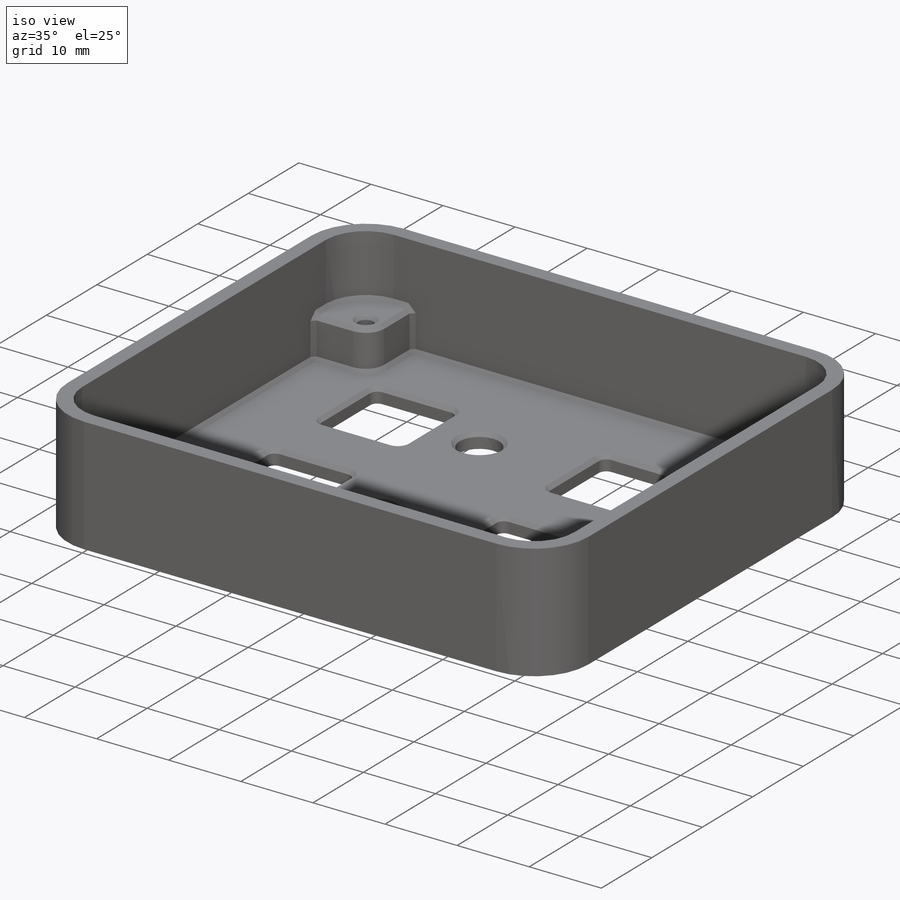
[diagram: iso view]
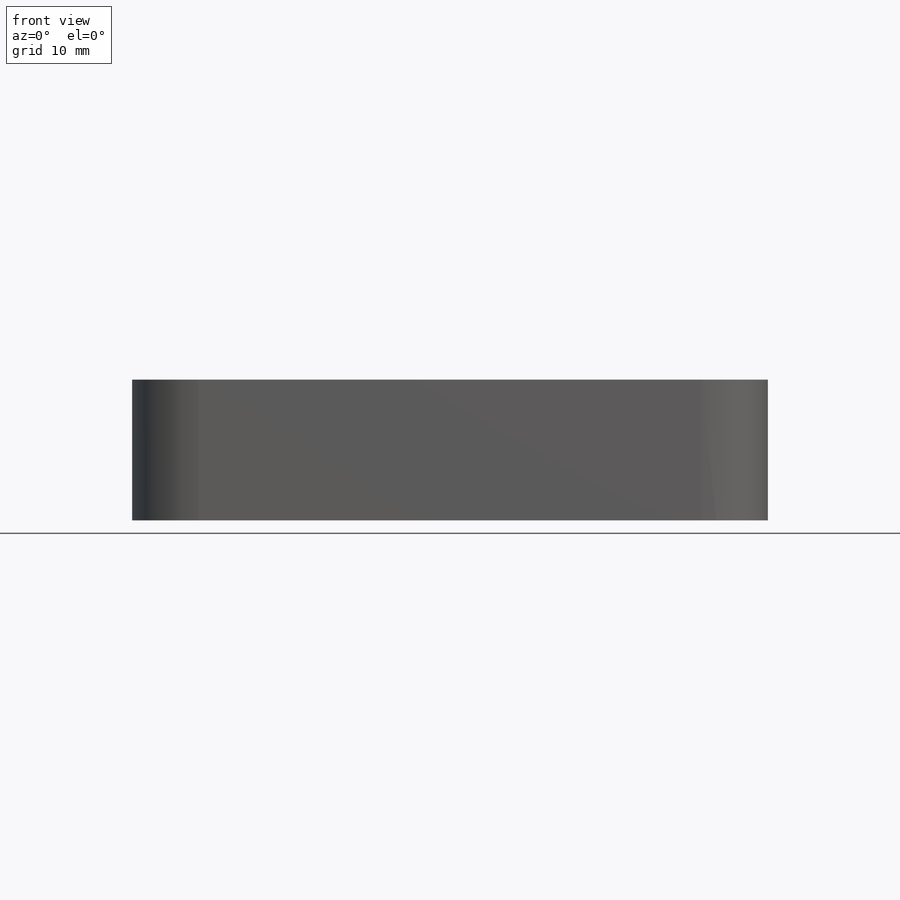
[diagram: front view]
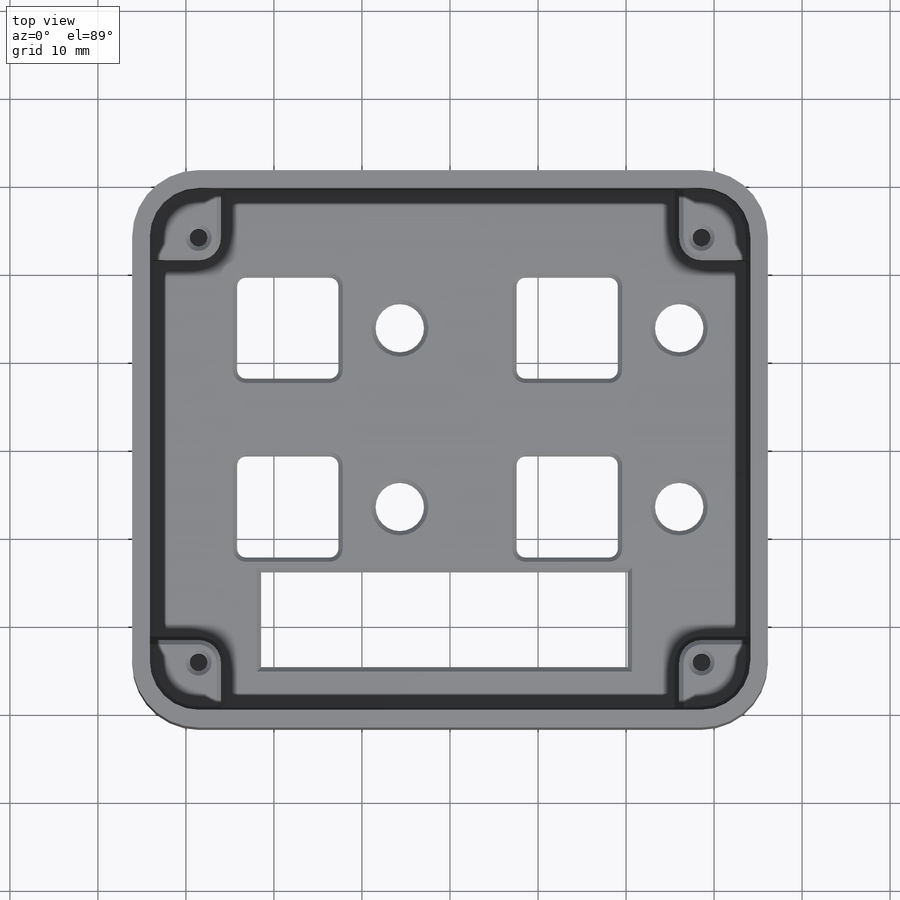
[diagram: top view]
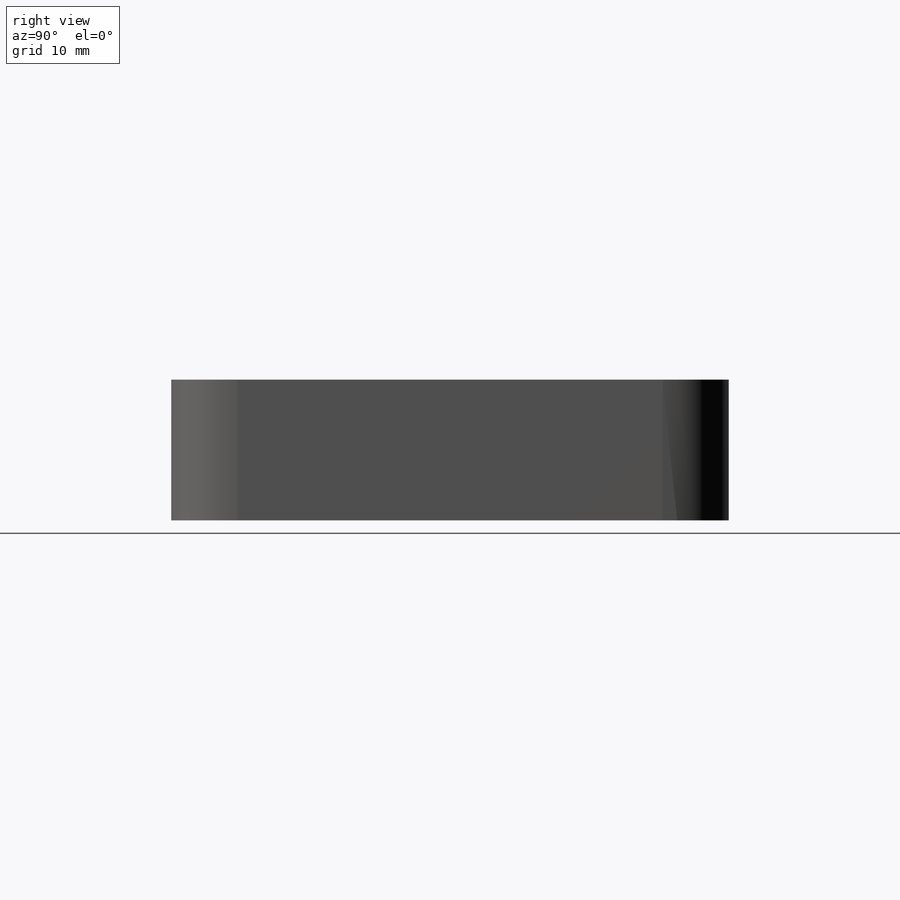
[diagram: right view]
SOLIDWORKS PART (.sldprt)
format: sldprt  version: not decoded by parser v0  size: 547,840 bytes
history: native  units: mm
features: sketch x3, extrude x2, material x1, fillet x1, shell x1, cut_extrude x1, chamfer x1 (+13 scaffold rows collapsed)
feature tree (23):
  scaffold x13  (default folders/planes/origin — collapsed)
  material  "Material <not specified>"
  sketch  "Sketch1"  dims[D1=63.34mm D2=72.23mm]
  extrude  "Boss-Extrude1"  Depth=16mm
  fillet  "Fillet1"  Radius=7.54mm
  shell  "Shell1"  Thickness=2mm
  sketch  "Sketch2"  dims[c1.D6=5.5mm c1.D15=1.0mm c1.D1=12.18mm c1.D2=30.41mm c1.D3=11.69mm c1.D4=11.5mm c1.D5=18.27mm c1.D9=31.75mm c1.D10=20.32mm c1.D11=13.91mm c1.D12=6.5mm c1.D13=11.1mm c1.D14=43.2mm c2.D3=17.7mm c2.D5=7.108mm c2.D11=10.8mm c2.D12=41.64mm c2.D13=17.68mm c2.D14=36.75mm c2.D7=2.0 c2.D8=2.0]
  cut_extrude  "Cut-Extrude1"  [1 undecoded]
  sketch  "Sketch3"  dims[c1.D5=2.0mm c1.D14=2.0mm c1.D21=2.0mm c1.D28=2.0mm c1.D8=3.58mm c1.D4=~4.663706mm c1.D12=3.58mm c1.D16=3.58mm c1.D27=2.54mm c1.D33=6.54mm c1.D1=3.0mm c1.D2=3.0mm c1.D3=8.69mm c2.D4=8.69mm c2.D6=5.54mm c2.D7=5.54mm c2.D8=0.0mm c2.D9=8.69mm c2.D10=0.0mm c2.D11=8.69mm c2.D12=5.54mm c2.D13=5.54mm c2.D15=0.0mm c2.D16=3.0mm c2.D17=8.69mm c2.D18=8.69mm c2.D19=5.54mm c2.D20=5.54mm c2.D22=0.0mm c2.D23=66.23mm c3.D23=90.0deg c4.D23=8.69mm c4.D24=0.0mm c4.D25=8.69mm c4.D26=5.54mm c4.D27=5.54mm c4.D29=~3.605551mm c4.D30=90.0deg c5.D30=3.0mm c5.D29=~3.941031mm c5.D16=0.0mm c6.D29=48.26mm c6.D30=57.15mm c6.D31=57.15mm c6.D32=48.26mm c6.D33=45.72mm c6.D8=3.58mm c6.D10=3.15mm c6.D4=5.54mm c6.D6=5.54mm c6.D7=5.54mm c7.D10=~7.394733mm c8.D10=90.0deg c9.D10=5.54mm c9.D11=5.54mm c9.D12=5.54mm c9.D13=8.69mm c9.D15=8.69mm c9.D16=5.11mm c9.D8=5.11mm c10.D8=90.0deg c11.D8=8.69mm c11.D16=5.11mm c12.D16=90.0deg c13.D16=8.69mm c13.D17=5.54mm c13.D18=5.54mm c13.D19=8.69mm c13.D20=8.69mm c13.D4=~7.468879mm c13.D6=~7.819294mm c14.D4=~12.830066mm c14.D6=~7.040504mm c15.D4=~8.757135mm c15.D6=~8.850035mm c16.D4=1.0mm c16.D6=1.0mm c16.D7=2.54mm c16.D8=2.54mm c16.D9=5.54mm c16.D10=5.54mm c16.D11=5.54mm c16.D12=5.54mm c16.D13=~9.784114mm c16.D15=~8.573213mm c17.D13=~10.080705mm c17.D15=~10.206459mm c18.D13=~11.617452mm c18.D15=~11.392039mm c19.D13=1.0mm c19.D15=1.0mm c19.D16=2.54mm c19.D17=2.54mm c19.D18=1.0mm c19.D19=1.0mm c19.D20=2.54mm c19.D22=2.54mm c19.D23=1.0mm c19.D24=1.0mm c19.D25=2.54mm c19.D26=2.54mm]
  extrude  "Boss-Extrude2"  Depth=5.5mm
  chamfer  "Chamfer1"  Distance=0.5mm Angle=45deg
decode coverage: 8 of 9 modeling features carry decoded parameters
note: ~ marks probable driven/reference dimensions
note: 1 parameter value undecoded
note: suppression state not decoded; provenance and decode notes live in map.json
